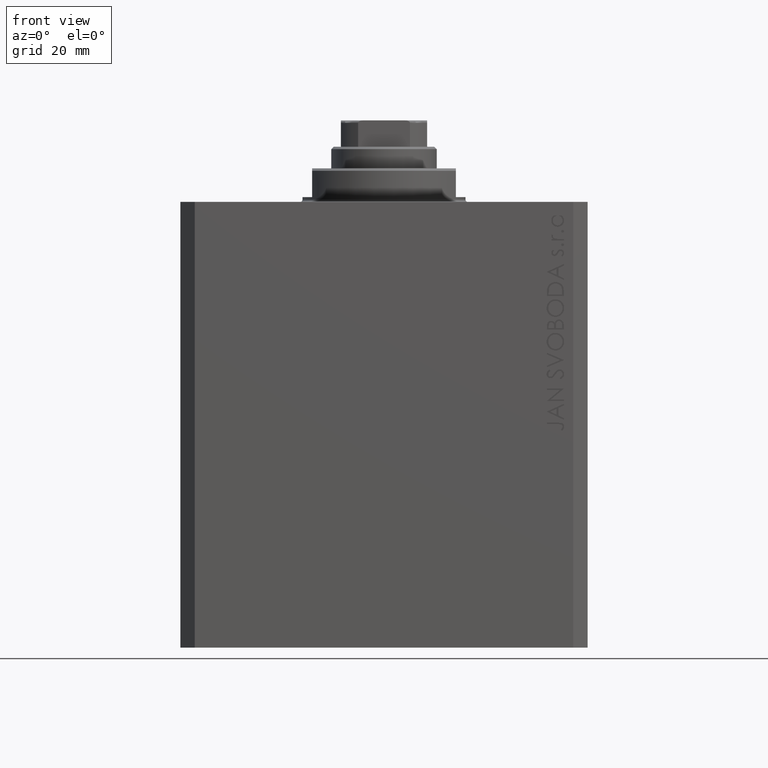
[diagram: clean part render]
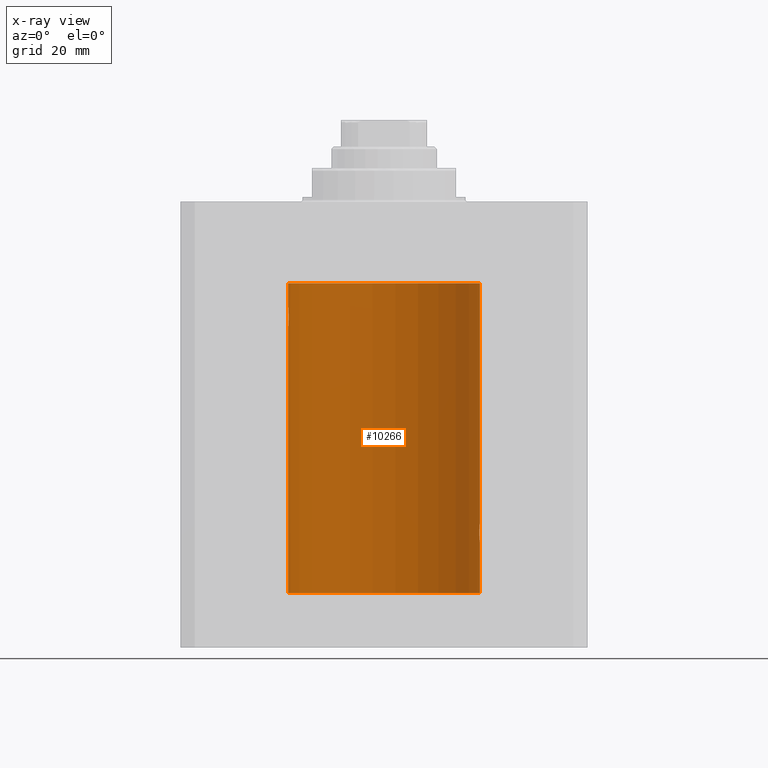
[diagram: x-ray — body ghosted, one internal face saturated and labeled with its STEP entity id]
A machine part, front view, then the same camera in x-ray: the body is ghosted and one INTERNAL B-rep face — a face not visible from any outside direction — is saturated and labeled: STEP entity #10266.
In plain terms, the highlighted cylindrical surface (partial cylindrical patch) has radius 20 mm, axis along (0, 0, 1).
Its self-contained STEP definition (entity closure, byte-faithful):
#233 = DIRECTION ( 'NONE',  ( -0.000000000000000000, -0.000000000000000000, 1.000000000000000000 ) ) ;
#465 = VERTEX_POINT ( 'NONE', #23527 ) ;
#528 = VECTOR ( 'NONE', #24059, 1000.000000000000000 ) ;
#901 = CARTESIAN_POINT ( 'NONE',  ( 20.00000000000000000, 0.000000000000000000, -17.00000000000000000 ) ) ;
#1761 = CARTESIAN_POINT ( 'NONE',  ( -19.93684595445884611, 1.598854313793185655, -22.77049887769366521 ) ) ;
#2640 = CARTESIAN_POINT ( 'NONE',  ( -20.00000000000000000, 2.449293582768784389E-15, -25.99999999999999645 ) ) ;
#3111 = CARTESIAN_POINT ( 'NONE',  ( 19.98995738555794688, 0.6452086089795042723, -70.89760345360159022 ) ) ;
#3549 = CARTESIAN_POINT ( 'NONE',  ( 19.89974874213236333, 2.000000000000336620, -69.00000000000000000 ) ) ;
#3782 = CARTESIAN_POINT ( 'NONE',  ( 19.97511131722831479, 1.003336743019912936, -67.26498565174387068 ) ) ;
#4465 = CARTESIAN_POINT ( 'NONE',  ( -19.96308513509966787, 1.219458756546270672, -22.40940266542446935 ) ) ;
#6179 = VECTOR ( 'NONE', #36001, 1000.000000000000000 ) ;
#6925 = CARTESIAN_POINT ( 'NONE',  ( 19.99868904672146641, 0.2623009746877876802, -70.98700898509812873 ) ) ;
#7144 = CARTESIAN_POINT ( 'NONE',  ( 20.00000000000000000, 1.967327733996653312E-15, -71.00000000000001421 ) ) ;
#7377 = CARTESIAN_POINT ( 'NONE',  ( 19.98998987637478209, 0.6441982143731844745, -67.10205654639887030 ) ) ;
#7851 = ORIENTED_EDGE ( 'NONE', *, *, #42895, .F. ) ;
#8060 = ORIENTED_EDGE ( 'NONE', *, *, #33305, .F. ) ;
#8062 = CARTESIAN_POINT ( 'NONE',  ( -19.89974399317116394, 2.000047251570890250, -24.12981181290706445 ) ) ;
#8089 = VERTEX_POINT ( 'NONE', #901 ) ;
#8212 = DIRECTION ( 'NONE',  ( -0.000000000000000000, -0.000000000000000000, 1.000000000000000000 ) ) ;
#8575 = LINE ( 'NONE', #29034, #6179 ) ;
#8730 = CARTESIAN_POINT ( 'NONE',  ( -19.99999999999999645, 0.1305706983324449733, -25.99999999999998934 ) ) ;
#8781 = DIRECTION ( 'NONE',  ( 1.000000000000000000, 0.000000000000000000, 0.000000000000000000 ) ) ;
#8842 = EDGE_CURVE ( 'NONE', #11671, #14633, #36287, .T. ) ;
#9049 = CARTESIAN_POINT ( 'NONE',  ( 0.000000000000000000, 0.000000000000000000, -81.59999999999999432 ) ) ;
#9421 = CARTESIAN_POINT ( 'NONE',  ( 19.95655800881796083, 1.320814917468111194, -67.49239309359697359 ) ) ;
#9865 = CARTESIAN_POINT ( 'NONE',  ( 19.99867993937906618, 0.2631387813862826053, -67.01308095003093968 ) ) ;
#10227 = AXIS2_PLACEMENT_3D ( 'NONE', #29243, #32403, #8781 ) ;
#10266 = ADVANCED_FACE ( 'NONE', ( #31827 ), #31607, .F. ) ;
#11654 = CARTESIAN_POINT ( 'NONE',  ( -19.98070694681040038, 0.8865903856744316025, -25.79753901127162763 ) ) ;
#11671 = VERTEX_POINT ( 'NONE', #41338 ) ;
#11697 = VECTOR ( 'NONE', #40162, 1000.000000000000000 ) ;
#11877 = CARTESIAN_POINT ( 'NONE',  ( -19.94330239452387232, 1.507796451871729504, -25.32060165083834136 ) ) ;
#12104 = CARTESIAN_POINT ( 'NONE',  ( -19.99365919015135518, 0.5196544277756711683, -25.93573148867292133 ) ) ;
#12359 = CARTESIAN_POINT ( 'NONE',  ( 19.90611763847108762, 1.935753518394741635, -68.48042243434849752 ) ) ;
#12803 = CARTESIAN_POINT ( 'NONE',  ( 19.93681418096177183, 1.590194273034202688, -67.78006300821553509 ) ) ;
#13332 = DIRECTION ( 'NONE',  ( 1.000000000000000000, 0.000000000000000000, 0.000000000000000000 ) ) ;
#13454 = CARTESIAN_POINT ( 'NONE',  ( 19.98066923111604964, 0.8874387315505228857, -70.79712145220240416 ) ) ;
#13468 = CARTESIAN_POINT ( 'NONE',  ( 19.98071536551674754, 0.8863972468204365240, -67.20236805399484581 ) ) ;
#13515 = LINE ( 'NONE', #37555, #25863 ) ;
#13687 = CARTESIAN_POINT ( 'NONE',  ( 19.99369727434158506, 0.5181068333511539281, -70.93612288282997724 ) ) ;
#13987 = CARTESIAN_POINT ( 'NONE',  ( -20.00000000000000000, 2.449293598294706513E-15, -17.00000000000000000 ) ) ;
#14349 = AXIS2_PLACEMENT_3D ( 'NONE', #9049, #22778, #13332 ) ;
#14353 = CARTESIAN_POINT ( 'NONE',  ( 19.97516523393783316, 1.002309963754524524, -70.73564471556110789 ) ) ;
#14599 = CARTESIAN_POINT ( 'NONE',  ( -19.96304379627741454, 1.220099331833899736, -25.59007067689674386 ) ) ;
#14633 = VERTEX_POINT ( 'NONE', #39808 ) ;
#15035 = CARTESIAN_POINT ( 'NONE',  ( -19.99370013622814568, 0.5179893069484621249, -22.06384771616670903 ) ) ;
#15262 = CARTESIAN_POINT ( 'NONE',  ( -19.90522393307484705, 1.947330458682957177, -23.47486091545001941 ) ) ;
#15483 = CARTESIAN_POINT ( 'NONE',  ( -19.92471474456649716, 1.735228749583835439, -25.00297226784954674 ) ) ;
#16751 = ORIENTED_EDGE ( 'NONE', *, *, #34655, .T. ) ;
#17282 = CARTESIAN_POINT ( 'NONE',  ( 20.00000000000000000, 0.1305404422160218736, -66.99999999999998579 ) ) ;
#18284 = CARTESIAN_POINT ( 'NONE',  ( -20.00000000000000000, -1.269718202421245235E-16, -22.00000000000000000 ) ) ;
#19236 = VERTEX_POINT ( 'NONE', #13987 ) ;
#20102 = EDGE_CURVE ( 'NONE', #8089, #19236, #37497, .T. ) ;
#20258 = ORIENTED_EDGE ( 'NONE', *, *, #8842, .T. ) ;
#20296 = ORIENTED_EDGE ( 'NONE', *, *, #42215, .T. ) ;
#21492 = CARTESIAN_POINT ( 'NONE',  ( 0.000000000000000000, 0.000000000000000000, -81.59999999999999432 ) ) ;
#21780 = CARTESIAN_POINT ( 'NONE',  ( -19.92373272380676497, 1.747830109444745927, -22.99354240926169624 ) ) ;
#22459 = CARTESIAN_POINT ( 'NONE',  ( -19.90610216711450420, 1.935912154109700190, -24.51899474186111050 ) ) ;
#22502 = EDGE_CURVE ( 'NONE', #465, #39656, #22645, .T. ) ;
#22645 = LINE ( 'NONE', #40598, #11697 ) ;
#22778 = DIRECTION ( 'NONE',  ( 0.000000000000000000, 0.000000000000000000, 1.000000000000000000 ) ) ;
#23008 = CARTESIAN_POINT ( 'NONE',  ( -20.00000000000000000, 2.449293582768784389E-15, -25.99999999999999645 ) ) ;
#23230 = CARTESIAN_POINT ( 'NONE',  ( 20.00000000000000000, 1.967327733996653312E-15, -71.00000000000001421 ) ) ;
#23357 = CARTESIAN_POINT ( 'NONE',  ( 19.89974874213236689, 2.000000000000336620, -68.86948983741757502 ) ) ;
#23527 = CARTESIAN_POINT ( 'NONE',  ( 20.00000000000000000, 0.000000000000000000, -81.59999999999999432 ) ) ;
#24059 = DIRECTION ( 'NONE',  ( -0.000000000000000000, -0.000000000000000000, 1.000000000000000000 ) ) ;
#24340 = AXIS2_PLACEMENT_3D ( 'NONE', #21492, #8212, #38334 ) ;
#25152 = CARTESIAN_POINT ( 'NONE',  ( -19.98067755938510714, 0.8872481584516758168, -22.20278656943303375 ) ) ;
#25192 = B_SPLINE_CURVE_WITH_KNOTS ( 'NONE', 3,
 ( #32351, #28513, #35702, #15035, #28743, #25152, #38623, #4465, #38853, #1761, #21780, #15262, #31890, #8062, #35475, #22459, #42447, #39531, #15483, #28966, #11877, #25595, #14599, #29189, #11654, #35933, #12104, #25824, #8730, #2640 ),
 .UNSPECIFIED., .F., .F.,
 ( 4, 2, 2, 2, 2, 2, 2, 2, 2, 2, 2, 2, 2, 2, 4 ),
 ( 1.233811249882840126E-19, 0.0003910512220831129202, 0.0007821024441662257319, 0.001173153666249338381, 0.001564204888332450813, 0.002346307332498675461, 0.003128409776664900326, 0.003519460998748018179, 0.003910512220831135165, 0.004301563442914253452, 0.004692614664997370871, 0.005083665887080488291, 0.005474717109163606578, 0.005865768331246723997, 0.006256819553329842284 ),
 .UNSPECIFIED. ) ;
#25595 = CARTESIAN_POINT ( 'NONE',  ( -19.95654117037011588, 1.321069663197671273, -25.50738641543989615 ) ) ;
#25824 = CARTESIAN_POINT ( 'NONE',  ( -19.99867931558985745, 0.2631998640366461362, -25.98691292011447374 ) ) ;
#25863 = VECTOR ( 'NONE', #233, 1000.000000000000000 ) ;
#26514 = CARTESIAN_POINT ( 'NONE',  ( 19.94332236886613074, 1.507531922383789524, -67.67909949904073130 ) ) ;
#27165 = CARTESIAN_POINT ( 'NONE',  ( 19.93682487288204541, 1.599118048130817149, -70.22917035181221479 ) ) ;
#27178 = CARTESIAN_POINT ( 'NONE',  ( 19.99366205580918887, 0.5195372307044503479, -67.06423906555804137 ) ) ;
#27531 = VERTEX_POINT ( 'NONE', #23008 ) ;
#28513 = CARTESIAN_POINT ( 'NONE',  ( -19.99999999999999645, 0.1322335637814733289, -21.99999999999999645 ) ) ;
#28743 = CARTESIAN_POINT ( 'NONE',  ( -19.98996196681220638, 0.6450624715427617506, -22.10234886833925572 ) ) ;
#28966 = CARTESIAN_POINT ( 'NONE',  ( -19.93679350243183990, 1.590453176650918676, -25.21960275349743696 ) ) ;
#29034 = CARTESIAN_POINT ( 'NONE',  ( 20.00000000000000000, 0.000000000000000000, -81.59999999999999432 ) ) ;
#29189 = CARTESIAN_POINT ( 'NONE',  ( -19.97510079925438475, 1.003547732426807171, -25.73489454601984150 ) ) ;
#29224 = EDGE_LOOP ( 'NONE', ( #43276, #7851, #39939, #16751, #20258, #35254, #40207, #8060, #20296 ) ) ;
#29243 = CARTESIAN_POINT ( 'NONE',  ( 0.000000000000000000, 0.000000000000000000, -17.00000000000000000 ) ) ;
#30279 = EDGE_CURVE ( 'NONE', #14633, #8089, #8575, .T. ) ;
#30586 = CARTESIAN_POINT ( 'NONE',  ( -20.00000000000000000, 2.449293598294706513E-15, -81.59999999999999432 ) ) ;
#31569 = CIRCLE ( 'NONE', #14349, 20.00000000000000000 ) ;
#31607 = CYLINDRICAL_SURFACE ( 'NONE', #24340, 20.00000000000000000 ) ;
#31827 = FACE_OUTER_BOUND ( 'NONE', #29224, .T. ) ;
#31890 = CARTESIAN_POINT ( 'NONE',  ( -19.89975827978156175, 1.999905101582726719, -23.73819846102561115 ) ) ;
#32139 = B_SPLINE_CURVE_WITH_KNOTS ( 'NONE', 3,
 ( #7144, #37936, #6925, #13687, #3111, #13454, #14353, #41746, #41089, #27165, #37714, #34777, #34343, #3549 ),
 .UNSPECIFIED., .F., .F.,
 ( 4, 2, 2, 2, 2, 2, 4 ),
 ( 1.911692756536875168E-18, 0.0003911418372936038769, 0.0007822836745872059107, 0.001173425511880807782, 0.001564567349174409870, 0.002346851023761584772, 0.003129134698348759892 ),
 .UNSPECIFIED. ) ;
#32351 = CARTESIAN_POINT ( 'NONE',  ( -20.00000000000000000, -1.269718202421245235E-16, -22.00000000000000000 ) ) ;
#32403 = DIRECTION ( 'NONE',  ( 0.000000000000000000, 0.000000000000000000, 1.000000000000000000 ) ) ;
#33305 = EDGE_CURVE ( 'NONE', #40425, #19236, #33507, .T. ) ;
#33381 = CARTESIAN_POINT ( 'NONE',  ( -20.00000000000000000, 2.449293598294706513E-15, -81.59999999999999432 ) ) ;
#33507 = LINE ( 'NONE', #30586, #528 ) ;
#34135 = CARTESIAN_POINT ( 'NONE',  ( 19.96305842179988588, 1.219858681717333138, -67.40974712539563996 ) ) ;
#34343 = CARTESIAN_POINT ( 'NONE',  ( 19.89974874213236689, 2.000000000000336620, -69.26114132155832692 ) ) ;
#34655 = EDGE_CURVE ( 'NONE', #39656, #11671, #32139, .T. ) ;
#34777 = CARTESIAN_POINT ( 'NONE',  ( 19.90520750556430229, 1.947496194184494378, -69.52455416993456083 ) ) ;
#35254 = ORIENTED_EDGE ( 'NONE', *, *, #30279, .T. ) ;
#35475 = CARTESIAN_POINT ( 'NONE',  ( -19.90106552791689154, 1.987020435121076734, -24.26241417820002155 ) ) ;
#35702 = CARTESIAN_POINT ( 'NONE',  ( -19.99868965376115071, 0.2622407139811102628, -22.01298505384673732 ) ) ;
#35933 = CARTESIAN_POINT ( 'NONE',  ( -19.98998539619404013, 0.6443418861413118259, -25.89789687358865322 ) ) ;
#36001 = DIRECTION ( 'NONE',  ( -0.000000000000000000, -0.000000000000000000, 1.000000000000000000 ) ) ;
#36287 = B_SPLINE_CURVE_WITH_KNOTS ( 'NONE', 3,
 ( #43159, #23357, #37063, #12359, #39776, #40222, #43590, #12803, #26514, #9421, #34135, #3782, #13468, #7377, #27178, #9865, #17282, #40878 ),
 .UNSPECIFIED., .F., .F.,
 ( 4, 2, 2, 2, 2, 2, 2, 2, 4 ),
 ( 0.003129134698348759892, 0.003520095305221480463, 0.003911055912094201469, 0.004302016518966922040, 0.004692977125839642612, 0.005083937732712363183, 0.005474898339585083755, 0.005865858946457804327, 0.006256819553330524898 ),
 .UNSPECIFIED. ) ;
#36626 = VERTEX_POINT ( 'NONE', #33381 ) ;
#37063 = CARTESIAN_POINT ( 'NONE',  ( 19.90107458412648711, 1.986930174329755161, -68.73692013941790435 ) ) ;
#37497 = CIRCLE ( 'NONE', #10227, 20.00000000000000000 ) ;
#37555 = CARTESIAN_POINT ( 'NONE',  ( -20.00000000000000000, 2.449293598294706513E-15, -81.59999999999999432 ) ) ;
#37714 = CARTESIAN_POINT ( 'NONE',  ( 19.92371056170336274, 1.748080295468898537, -70.00603865937250703 ) ) ;
#37936 = CARTESIAN_POINT ( 'NONE',  ( 20.00000000000000000, 0.1322642052205942886, -71.00000000000005684 ) ) ;
#38334 = DIRECTION ( 'NONE',  ( 1.000000000000000000, 0.000000000000000000, 0.000000000000000000 ) ) ;
#38623 = CARTESIAN_POINT ( 'NONE',  ( -19.97517568592526160, 1.002099838626314909, -22.26423634872104884 ) ) ;
#38853 = CARTESIAN_POINT ( 'NONE',  ( -19.95645382900617903, 1.322305185229311064, -22.49384229619286657 ) ) ;
#39531 = CARTESIAN_POINT ( 'NONE',  ( -19.91909332229799290, 1.797847595792767317, -24.88596189455837759 ) ) ;
#39656 = VERTEX_POINT ( 'NONE', #23230 ) ;
#39776 = CARTESIAN_POINT ( 'NONE',  ( 19.90980722176544049, 1.897923463361389285, -68.35574535366808391 ) ) ;
#39808 = CARTESIAN_POINT ( 'NONE',  ( 20.00000000000000000, -1.553109350199128042E-23, -67.00000000000000000 ) ) ;
#39939 = ORIENTED_EDGE ( 'NONE', *, *, #22502, .T. ) ;
#40144 = EDGE_CURVE ( 'NONE', #36626, #27531, #13515, .T. ) ;
#40162 = DIRECTION ( 'NONE',  ( -0.000000000000000000, -0.000000000000000000, 1.000000000000000000 ) ) ;
#40207 = ORIENTED_EDGE ( 'NONE', *, *, #20102, .T. ) ;
#40222 = CARTESIAN_POINT ( 'NONE',  ( 19.91911433329477177, 1.797615436563606561, -68.11357106075777779 ) ) ;
#40425 = VERTEX_POINT ( 'NONE', #18284 ) ;
#40598 = CARTESIAN_POINT ( 'NONE',  ( 20.00000000000000000, 0.000000000000000000, -81.59999999999999432 ) ) ;
#40878 = CARTESIAN_POINT ( 'NONE',  ( 20.00000000000000000, -1.553109350199128042E-23, -67.00000000000000000 ) ) ;
#41089 = CARTESIAN_POINT ( 'NONE',  ( 19.95643710845398999, 1.322557776536547047, -70.50593841146687168 ) ) ;
#41338 = CARTESIAN_POINT ( 'NONE',  ( 19.89974874213236333, 2.000000000000336620, -69.00000000000000000 ) ) ;
#41746 = CARTESIAN_POINT ( 'NONE',  ( 19.96307037068151757, 1.219701915132744841, -70.59041349350364669 ) ) ;
#42215 = EDGE_CURVE ( 'NONE', #40425, #27531, #25192, .T. ) ;
#42447 = CARTESIAN_POINT ( 'NONE',  ( -19.90978941500366872, 1.898109641280506521, -24.64371130639850804 ) ) ;
#42895 = EDGE_CURVE ( 'NONE', #465, #36626, #31569, .T. ) ;
#43159 = CARTESIAN_POINT ( 'NONE',  ( 19.89974874213236333, 2.000000000000336620, -69.00000000000000000 ) ) ;
#43276 = ORIENTED_EDGE ( 'NONE', *, *, #40144, .F. ) ;
#43590 = CARTESIAN_POINT ( 'NONE',  ( 19.92473605353366040, 1.734984354167257159, -67.99660905888589468 ) ) ;